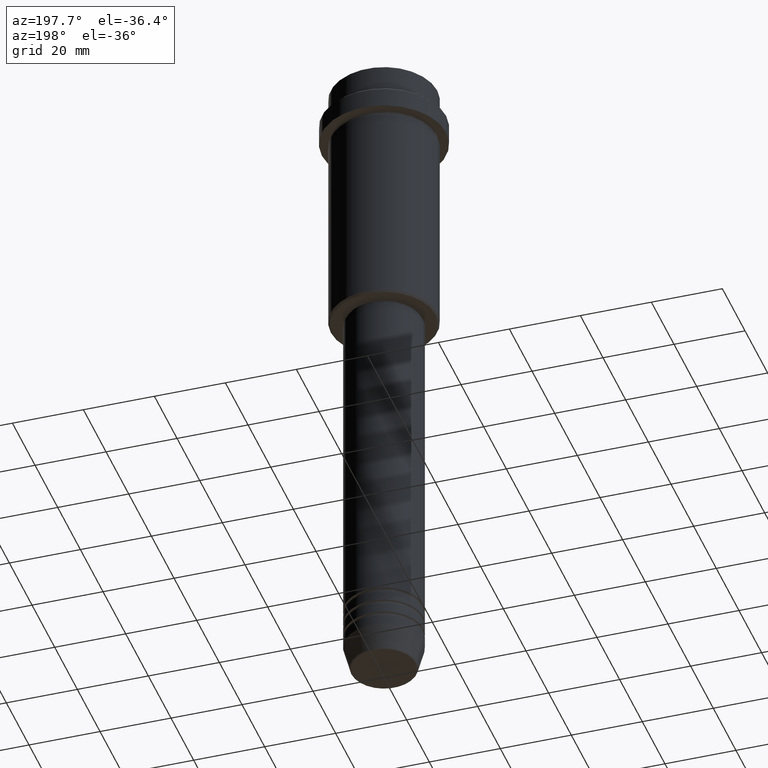
[diagram: clean part render]
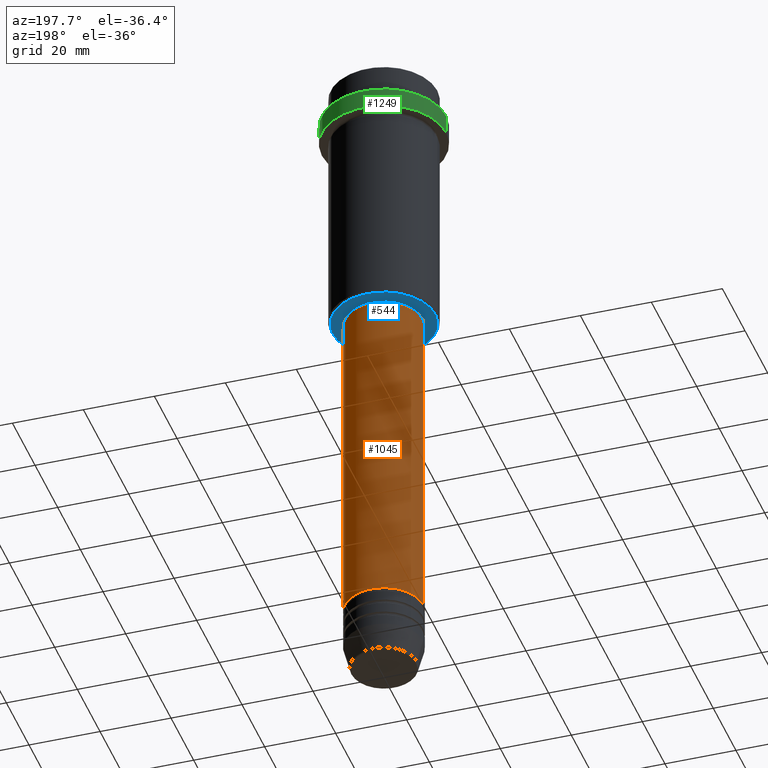
[diagram: same view with three faces highlighted in distinct colors, each labeled with its STEP entity id]
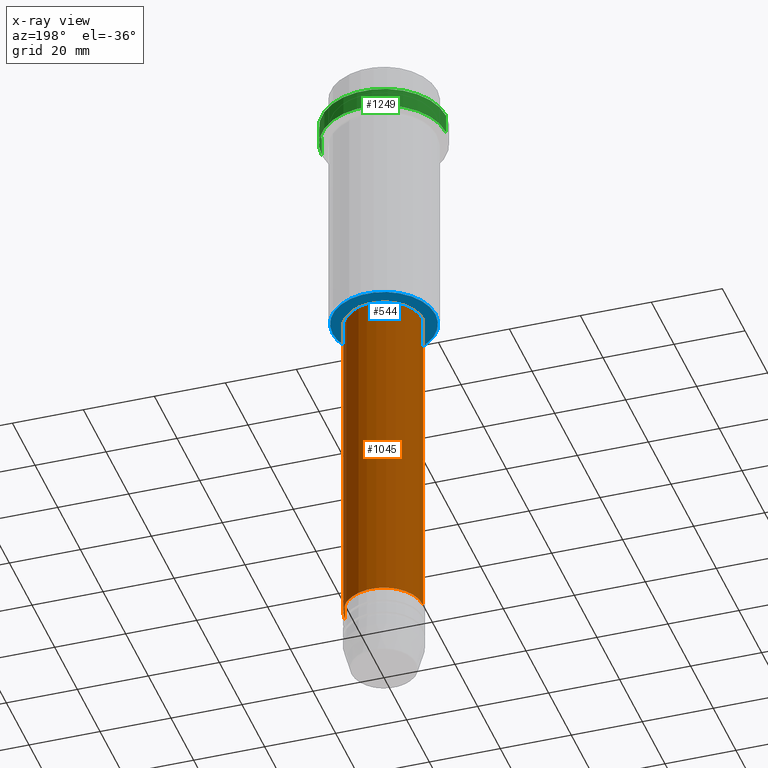
[diagram: x-ray of the same camera — body ghosted, the three highlighted faces saturated]
A machine part, auxiliary view with three faces highlighted in distinct colors.
The next image is the same camera in x-ray (body ghosted, the three faces saturated) — at least one of them is partly hidden behind the body in this view.
Their STEP definitions:

[orange] entity #1045 — the highlighted cylindrical surface (partial cylindrical patch) has radius 11 mm, axis along (-0, -0, 1).
#38 = EDGE_CURVE ( 'NONE', #1003, #180, #870, .T. ) ;
#78 = FACE_OUTER_BOUND ( 'NONE', #1365, .T. ) ;
#175 = AXIS2_PLACEMENT_3D ( 'NONE', #1000, #465, #1217 ) ;
#180 = VERTEX_POINT ( 'NONE', #420 ) ;
#201 = CARTESIAN_POINT ( 'NONE',  ( -11.00000000000000000, 1.347111479062088405E-15, 0.000000000000000000 ) ) ;
#246 = CARTESIAN_POINT ( 'NONE',  ( 11.00000000000000000, 0.000000000000000000, -170.9999999999999147 ) ) ;
#345 = DIRECTION ( 'NONE',  ( -0.000000000000000000, -0.000000000000000000, 1.000000000000000000 ) ) ;
#364 = ORIENTED_EDGE ( 'NONE', *, *, #1309, .F. ) ;
#420 = CARTESIAN_POINT ( 'NONE',  ( -10.99999999999999822, 1.347111479062088207E-15, -76.00000000000001421 ) ) ;
#422 = ORIENTED_EDGE ( 'NONE', *, *, #758, .F. ) ;
#433 = DIRECTION ( 'NONE',  ( -0.000000000000000000, -0.000000000000000000, 1.000000000000000000 ) ) ;
#465 = DIRECTION ( 'NONE',  ( -0.000000000000000000, -0.000000000000000000, 1.000000000000000000 ) ) ;
#477 = LINE ( 'NONE', #502, #1205 ) ;
#494 = DIRECTION ( 'NONE',  ( 1.000000000000000000, 0.000000000000000000, 0.000000000000000000 ) ) ;
#502 = CARTESIAN_POINT ( 'NONE',  ( 11.00000000000000000, 0.000000000000000000, 0.000000000000000000 ) ) ;
#534 = CIRCLE ( 'NONE', #175, 10.99999999999999822 ) ;
#543 = AXIS2_PLACEMENT_3D ( 'NONE', #1393, #433, #660 ) ;
#576 = ORIENTED_EDGE ( 'NONE', *, *, #879, .T. ) ;
#608 = ORIENTED_EDGE ( 'NONE', *, *, #38, .T. ) ;
#651 = CIRCLE ( 'NONE', #754, 11.00000000000000000 ) ;
#660 = DIRECTION ( 'NONE',  ( 1.000000000000000000, 0.000000000000000000, 0.000000000000000000 ) ) ;
#740 = CARTESIAN_POINT ( 'NONE',  ( -11.00000000000000000, 1.347111479062088405E-15, -170.9999999999999147 ) ) ;
#754 = AXIS2_PLACEMENT_3D ( 'NONE', #1247, #1138, #494 ) ;
#758 = EDGE_CURVE ( 'NONE', #777, #180, #534, .T. ) ;
#777 = VERTEX_POINT ( 'NONE', #779 ) ;
#779 = CARTESIAN_POINT ( 'NONE',  ( 10.99999999999999822, 0.000000000000000000, -76.00000000000001421 ) ) ;
#870 = LINE ( 'NONE', #201, #885 ) ;
#879 = EDGE_CURVE ( 'NONE', #1162, #1003, #651, .T. ) ;
#885 = VECTOR ( 'NONE', #345, 1000.000000000000000 ) ;
#1000 = CARTESIAN_POINT ( 'NONE',  ( 0.000000000000000000, 0.000000000000000000, -76.00000000000001421 ) ) ;
#1003 = VERTEX_POINT ( 'NONE', #740 ) ;
#1045 = ADVANCED_FACE ( 'NONE', ( #78 ), #1284, .T. ) ;
#1138 = DIRECTION ( 'NONE',  ( -0.000000000000000000, -0.000000000000000000, 1.000000000000000000 ) ) ;
#1142 = DIRECTION ( 'NONE',  ( -0.000000000000000000, -0.000000000000000000, 1.000000000000000000 ) ) ;
#1162 = VERTEX_POINT ( 'NONE', #246 ) ;
#1205 = VECTOR ( 'NONE', #1142, 1000.000000000000000 ) ;
#1217 = DIRECTION ( 'NONE',  ( 1.000000000000000000, 0.000000000000000000, 0.000000000000000000 ) ) ;
#1247 = CARTESIAN_POINT ( 'NONE',  ( 0.000000000000000000, 0.000000000000000000, -170.9999999999999147 ) ) ;
#1284 = CYLINDRICAL_SURFACE ( 'NONE', #543, 11.00000000000000000 ) ;
#1309 = EDGE_CURVE ( 'NONE', #1162, #777, #477, .T. ) ;
#1365 = EDGE_LOOP ( 'NONE', ( #576, #608, #422, #364 ) ) ;
#1393 = CARTESIAN_POINT ( 'NONE',  ( 0.000000000000000000, 0.000000000000000000, 0.000000000000000000 ) ) ;

[blue] entity #544 — the highlighted planar face has unit normal (0, 0, -1).
#21 = ORIENTED_EDGE ( 'NONE', *, *, #838, .T. ) ;
#54 = DIRECTION ( 'NONE',  ( 0.000000000000000000, 0.000000000000000000, -1.000000000000000000 ) ) ;
#77 = EDGE_LOOP ( 'NONE', ( #21, #781 ) ) ;
#172 = AXIS2_PLACEMENT_3D ( 'NONE', #1168, #860, #1185 ) ;
#188 = FACE_BOUND ( 'NONE', #232, .T. ) ;
#202 = CARTESIAN_POINT ( 'NONE',  ( 10.49999999999999289, 0.000000000000000000, -75.00000000000001421 ) ) ;
#203 = PLANE ( 'NONE',  #789 ) ;
#232 = EDGE_LOOP ( 'NONE', ( #635, #1250 ) ) ;
#270 = EDGE_CURVE ( 'NONE', #1034, #485, #620, .T. ) ;
#318 = AXIS2_PLACEMENT_3D ( 'NONE', #1364, #1140, #389 ) ;
#335 = FACE_OUTER_BOUND ( 'NONE', #77, .T. ) ;
#367 = CARTESIAN_POINT ( 'NONE',  ( -14.49999999999996980, 1.806354028742344224E-15, -75.00000000000001421 ) ) ;
#389 = DIRECTION ( 'NONE',  ( -1.000000000000000000, 0.000000000000000000, 0.000000000000000000 ) ) ;
#418 = EDGE_CURVE ( 'NONE', #1339, #917, #1107, .T. ) ;
#438 = CIRCLE ( 'NONE', #1291, 10.49999999999999289 ) ;
#485 = VERTEX_POINT ( 'NONE', #516 ) ;
#509 = CARTESIAN_POINT ( 'NONE',  ( 14.49999999999996980, 0.000000000000000000, -75.00000000000001421 ) ) ;
#516 = CARTESIAN_POINT ( 'NONE',  ( -10.49999999999999289, 1.285879139104720042E-15, -75.00000000000001421 ) ) ;
#544 = ADVANCED_FACE ( 'NONE', ( #335, #188 ), #203, .T. ) ;
#609 = EDGE_CURVE ( 'NONE', #485, #1034, #438, .T. ) ;
#620 = CIRCLE ( 'NONE', #172, 10.49999999999999289 ) ;
#635 = ORIENTED_EDGE ( 'NONE', *, *, #270, .T. ) ;
#663 = DIRECTION ( 'NONE',  ( -1.000000000000000000, 0.000000000000000000, -0.000000000000000000 ) ) ;
#752 = DIRECTION ( 'NONE',  ( -0.000000000000000000, -0.000000000000000000, 1.000000000000000000 ) ) ;
#781 = ORIENTED_EDGE ( 'NONE', *, *, #418, .T. ) ;
#789 = AXIS2_PLACEMENT_3D ( 'NONE', #1074, #1403, #663 ) ;
#838 = EDGE_CURVE ( 'NONE', #917, #1339, #1133, .T. ) ;
#860 = DIRECTION ( 'NONE',  ( -0.000000000000000000, -0.000000000000000000, 1.000000000000000000 ) ) ;
#917 = VERTEX_POINT ( 'NONE', #509 ) ;
#1029 = CARTESIAN_POINT ( 'NONE',  ( 0.000000000000000000, 0.000000000000000000, -75.00000000000001421 ) ) ;
#1034 = VERTEX_POINT ( 'NONE', #202 ) ;
#1074 = CARTESIAN_POINT ( 'NONE',  ( 0.000000000000000000, 15.00000000000000000, -75.00000000000001421 ) ) ;
#1107 = CIRCLE ( 'NONE', #318, 14.49999999999996980 ) ;
#1133 = CIRCLE ( 'NONE', #1314, 14.49999999999996980 ) ;
#1140 = DIRECTION ( 'NONE',  ( 0.000000000000000000, 0.000000000000000000, -1.000000000000000000 ) ) ;
#1168 = CARTESIAN_POINT ( 'NONE',  ( 0.000000000000000000, 0.000000000000000000, -75.00000000000001421 ) ) ;
#1183 = DIRECTION ( 'NONE',  ( 1.000000000000000000, 0.000000000000000000, 0.000000000000000000 ) ) ;
#1185 = DIRECTION ( 'NONE',  ( 1.000000000000000000, 0.000000000000000000, 0.000000000000000000 ) ) ;
#1238 = DIRECTION ( 'NONE',  ( -1.000000000000000000, 0.000000000000000000, 0.000000000000000000 ) ) ;
#1250 = ORIENTED_EDGE ( 'NONE', *, *, #609, .T. ) ;
#1291 = AXIS2_PLACEMENT_3D ( 'NONE', #1299, #752, #1183 ) ;
#1299 = CARTESIAN_POINT ( 'NONE',  ( 0.000000000000000000, 0.000000000000000000, -75.00000000000001421 ) ) ;
#1314 = AXIS2_PLACEMENT_3D ( 'NONE', #1029, #54, #1238 ) ;
#1339 = VERTEX_POINT ( 'NONE', #367 ) ;
#1364 = CARTESIAN_POINT ( 'NONE',  ( 0.000000000000000000, 0.000000000000000000, -75.00000000000001421 ) ) ;
#1403 = DIRECTION ( 'NONE',  ( 0.000000000000000000, 0.000000000000000000, -1.000000000000000000 ) ) ;

[green] entity #1249 — the highlighted cylindrical surface (partial cylindrical patch) has radius 17.5 mm, axis along (-0, -0, 1).
#9 = VERTEX_POINT ( 'NONE', #802 ) ;
#57 = VERTEX_POINT ( 'NONE', #792 ) ;
#63 = EDGE_CURVE ( 'NONE', #9, #591, #1289, .T. ) ;
#136 = CYLINDRICAL_SURFACE ( 'NONE', #373, 17.50000000000000000 ) ;
#143 = LINE ( 'NONE', #171, #449 ) ;
#171 = CARTESIAN_POINT ( 'NONE',  ( 17.50000000000000000, 0.000000000000000000, 0.000000000000000000 ) ) ;
#210 = DIRECTION ( 'NONE',  ( -0.000000000000000000, -0.000000000000000000, 1.000000000000000000 ) ) ;
#221 = LINE ( 'NONE', #596, #586 ) ;
#245 = CARTESIAN_POINT ( 'NONE',  ( 0.000000000000000000, 0.000000000000000000, -9.500000000000001776 ) ) ;
#256 = ORIENTED_EDGE ( 'NONE', *, *, #63, .T. ) ;
#373 = AXIS2_PLACEMENT_3D ( 'NONE', #469, #1329, #446 ) ;
#390 = EDGE_LOOP ( 'NONE', ( #1260, #723, #256, #1219 ) ) ;
#446 = DIRECTION ( 'NONE',  ( 1.000000000000000000, 0.000000000000000000, 0.000000000000000000 ) ) ;
#449 = VECTOR ( 'NONE', #716, 1000.000000000000000 ) ;
#469 = CARTESIAN_POINT ( 'NONE',  ( 0.000000000000000000, 0.000000000000000000, 0.000000000000000000 ) ) ;
#537 = CARTESIAN_POINT ( 'NONE',  ( 17.50000000000000000, 0.000000000000000000, -9.500000000000001776 ) ) ;
#586 = VECTOR ( 'NONE', #602, 1000.000000000000000 ) ;
#591 = VERTEX_POINT ( 'NONE', #537 ) ;
#596 = CARTESIAN_POINT ( 'NONE',  ( -17.50000000000000000, 2.143131898507868248E-15, 0.000000000000000000 ) ) ;
#602 = DIRECTION ( 'NONE',  ( -0.000000000000000000, -0.000000000000000000, 1.000000000000000000 ) ) ;
#633 = EDGE_CURVE ( 'NONE', #57, #807, #1333, .T. ) ;
#641 = DIRECTION ( 'NONE',  ( 1.000000000000000000, 0.000000000000000000, 0.000000000000000000 ) ) ;
#685 = AXIS2_PLACEMENT_3D ( 'NONE', #245, #1222, #1213 ) ;
#716 = DIRECTION ( 'NONE',  ( -0.000000000000000000, -0.000000000000000000, 1.000000000000000000 ) ) ;
#723 = ORIENTED_EDGE ( 'NONE', *, *, #1265, .T. ) ;
#731 = AXIS2_PLACEMENT_3D ( 'NONE', #1195, #210, #641 ) ;
#792 = CARTESIAN_POINT ( 'NONE',  ( 17.50000000000000000, 0.000000000000000000, -15.00000000000000178 ) ) ;
#802 = CARTESIAN_POINT ( 'NONE',  ( -17.50000000000000000, 2.143131898507868248E-15, -9.500000000000001776 ) ) ;
#807 = VERTEX_POINT ( 'NONE', #1092 ) ;
#1092 = CARTESIAN_POINT ( 'NONE',  ( -17.50000000000000000, 2.143131898507868248E-15, -15.00000000000000178 ) ) ;
#1195 = CARTESIAN_POINT ( 'NONE',  ( 0.000000000000000000, 0.000000000000000000, -15.00000000000000178 ) ) ;
#1213 = DIRECTION ( 'NONE',  ( 1.000000000000000000, 0.000000000000000000, 0.000000000000000000 ) ) ;
#1219 = ORIENTED_EDGE ( 'NONE', *, *, #1349, .F. ) ;
#1222 = DIRECTION ( 'NONE',  ( 0.000000000000000000, 0.000000000000000000, -1.000000000000000000 ) ) ;
#1249 = ADVANCED_FACE ( 'NONE', ( #1416 ), #136, .T. ) ;
#1260 = ORIENTED_EDGE ( 'NONE', *, *, #633, .T. ) ;
#1265 = EDGE_CURVE ( 'NONE', #807, #9, #221, .T. ) ;
#1289 = CIRCLE ( 'NONE', #685, 17.50000000000000000 ) ;
#1329 = DIRECTION ( 'NONE',  ( -0.000000000000000000, -0.000000000000000000, 1.000000000000000000 ) ) ;
#1333 = CIRCLE ( 'NONE', #731, 17.50000000000000000 ) ;
#1349 = EDGE_CURVE ( 'NONE', #57, #591, #143, .T. ) ;
#1416 = FACE_OUTER_BOUND ( 'NONE', #390, .T. ) ;